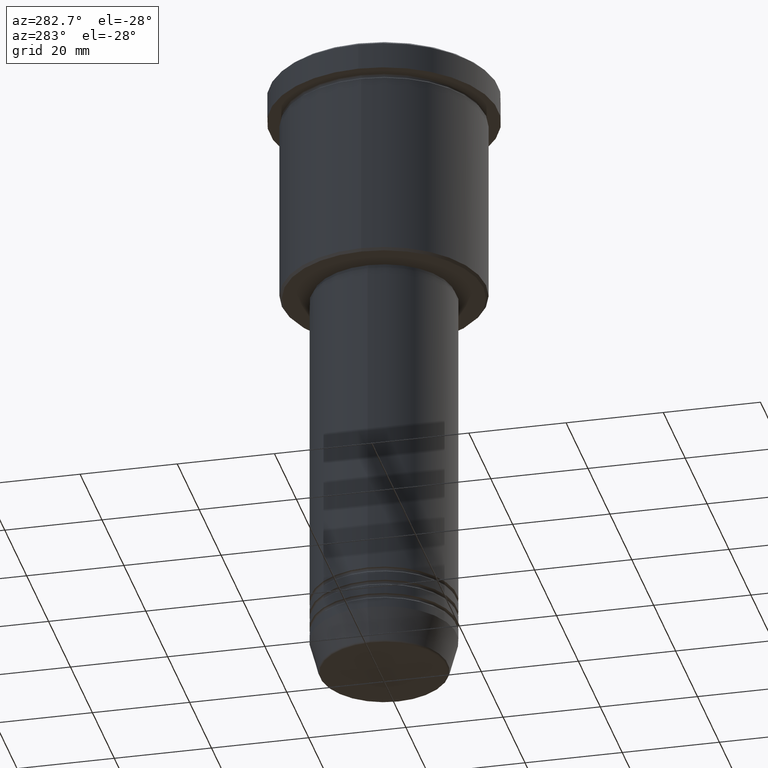
[diagram: clean part render]
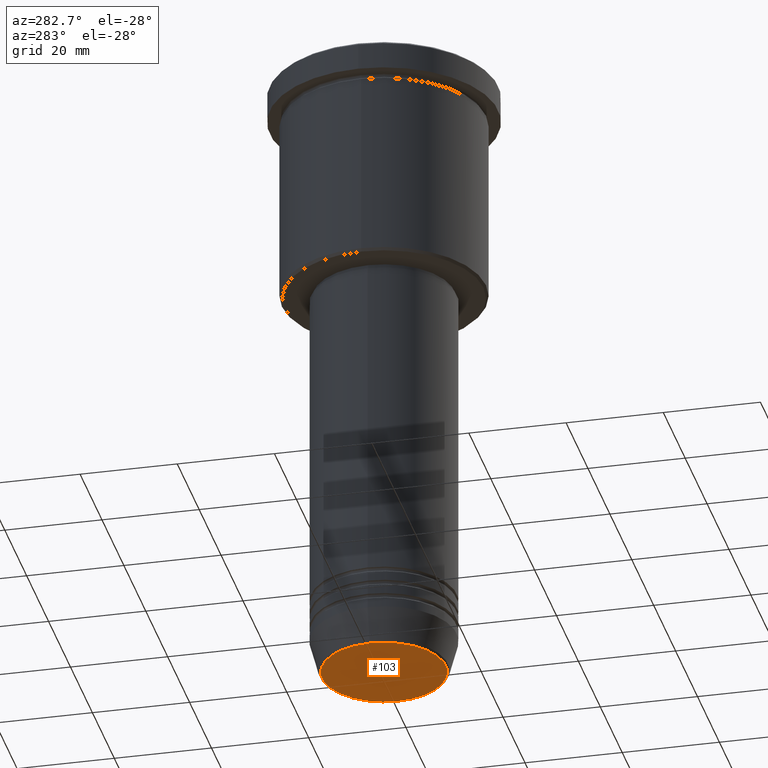
[diagram: same view with one face highlighted and labeled with its STEP entity id]
A machine part, auxiliary view. The second image highlights one B-rep face of the part: STEP entity #103.
In plain terms, the highlighted planar face has unit normal (0, -0, 1).
Its self-contained STEP definition (entity closure, byte-faithful):
#53 = CARTESIAN_POINT ( 'NONE',  ( -12.74069215899265473, 1.589857736427680640E-15, -131.0000000000000000 ) ) ;
#69 = CARTESIAN_POINT ( 'NONE',  ( 0.000000000000000000, 0.000000000000000000, -131.0000000000000000 ) ) ;
#78 = CIRCLE ( 'NONE', #744, 12.74069215899265473 ) ;
#103 = ADVANCED_FACE ( 'NONE', ( #531 ), #964, .F. ) ;
#125 = CARTESIAN_POINT ( 'NONE',  ( 0.000000000000000000, 0.000000000000000000, -131.0000000000000000 ) ) ;
#140 = ORIENTED_EDGE ( 'NONE', *, *, #638, .T. ) ;
#158 = EDGE_LOOP ( 'NONE', ( #1042, #140 ) ) ;
#270 = VERTEX_POINT ( 'NONE', #755 ) ;
#487 = AXIS2_PLACEMENT_3D ( 'NONE', #69, #798, #1046 ) ;
#494 = DIRECTION ( 'NONE',  ( 0.000000000000000000, 0.000000000000000000, -1.000000000000000000 ) ) ;
#531 = FACE_OUTER_BOUND ( 'NONE', #158, .T. ) ;
#542 = AXIS2_PLACEMENT_3D ( 'NONE', #623, #709, #881 ) ;
#570 = EDGE_CURVE ( 'NONE', #270, #609, #78, .T. ) ;
#609 = VERTEX_POINT ( 'NONE', #53 ) ;
#623 = CARTESIAN_POINT ( 'NONE',  ( 0.000000000000000000, 0.000000000000000000, -131.0000000000000000 ) ) ;
#638 = EDGE_CURVE ( 'NONE', #609, #270, #978, .T. ) ;
#709 = DIRECTION ( 'NONE',  ( 0.000000000000000000, -0.000000000000000000, 1.000000000000000000 ) ) ;
#744 = AXIS2_PLACEMENT_3D ( 'NONE', #125, #494, #865 ) ;
#755 = CARTESIAN_POINT ( 'NONE',  ( 12.74069215899265473, 0.000000000000000000, -131.0000000000000000 ) ) ;
#798 = DIRECTION ( 'NONE',  ( 0.000000000000000000, 0.000000000000000000, -1.000000000000000000 ) ) ;
#865 = DIRECTION ( 'NONE',  ( 1.000000000000000000, 0.000000000000000000, 0.000000000000000000 ) ) ;
#881 = DIRECTION ( 'NONE',  ( 1.000000000000000000, 0.000000000000000000, 0.000000000000000000 ) ) ;
#964 = PLANE ( 'NONE',  #542 ) ;
#978 = CIRCLE ( 'NONE', #487, 12.74069215899265473 ) ;
#1042 = ORIENTED_EDGE ( 'NONE', *, *, #570, .T. ) ;
#1046 = DIRECTION ( 'NONE',  ( 1.000000000000000000, 0.000000000000000000, 0.000000000000000000 ) ) ;